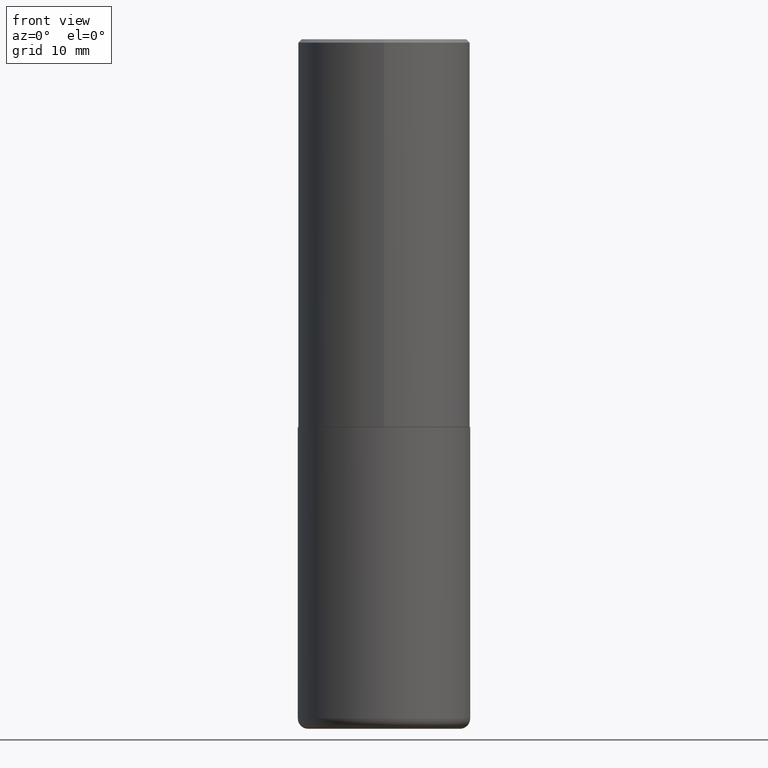
[diagram: clean part render]
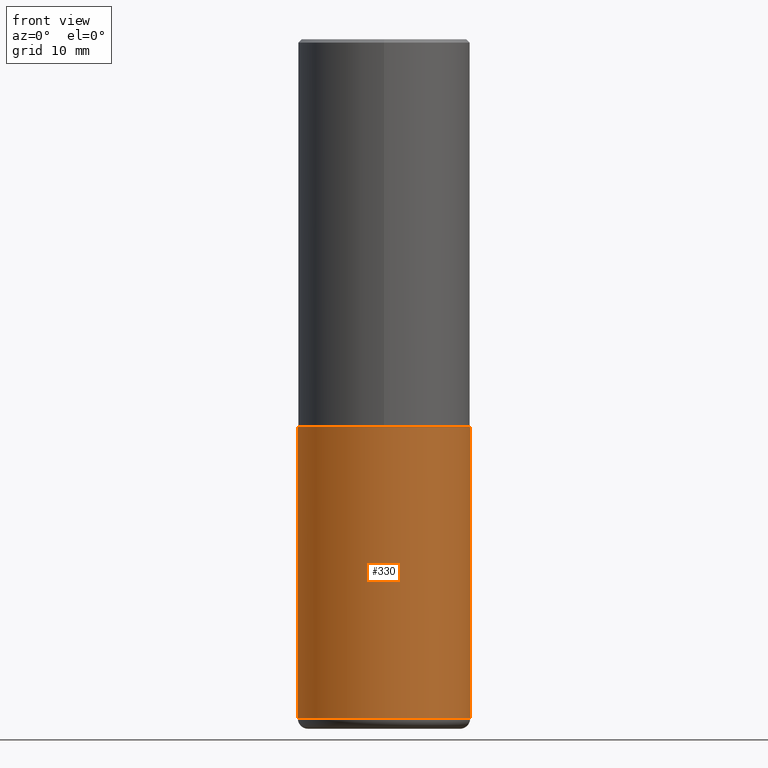
[diagram: same view with one face highlighted and labeled with its STEP entity id]
A machine part, front view. The second image highlights one B-rep face of the part: STEP entity #330.
In plain terms, the highlighted cylindrical surface (partial cylindrical patch) has radius 12.7 mm, axis along (-0, 0, 1).
Its self-contained STEP definition (entity closure, byte-faithful):
#11 = DIRECTION ( 'NONE',  ( -2.445468806185136877E-29, 3.491481338843145188E-15, 1.000000000000000000 ) ) ;
#17 = CARTESIAN_POINT ( 'NONE',  ( -0.5000000000000000000, -1.020372279624149466E-14, -3.939999999999999947 ) ) ;
#25 = DIRECTION ( 'NONE',  ( -2.445468806185136597E-29, 3.491481338843145583E-15, 1.000000000000000000 ) ) ;
#36 = VERTEX_POINT ( 'NONE', #273 ) ;
#45 = EDGE_LOOP ( 'NONE', ( #415, #283, #410, #186 ) ) ;
#80 = DIRECTION ( 'NONE',  ( -2.445468806185136597E-29, 3.491481338843145583E-15, 1.000000000000000000 ) ) ;
#83 = DIRECTION ( 'NONE',  ( -2.445468806185136597E-29, 3.491481338843145583E-15, 1.000000000000000000 ) ) ;
#110 = AXIS2_PLACEMENT_3D ( 'NONE', #185, #80, #333 ) ;
#115 = CIRCLE ( 'NONE', #240, 0.5000000000000000000 ) ;
#118 = FACE_OUTER_BOUND ( 'NONE', #45, .T. ) ;
#126 = EDGE_CURVE ( 'NONE', #215, #36, #115, .T. ) ;
#130 = LINE ( 'NONE', #336, #141 ) ;
#139 = CARTESIAN_POINT ( 'NONE',  ( 5.502304813916557343E-29, -7.855833012397078448E-15, -2.250000000000000000 ) ) ;
#141 = VECTOR ( 'NONE', #350, 39.37007874015748143 ) ;
#149 = CYLINDRICAL_SURFACE ( 'NONE', #110, 0.5000000000000000000 ) ;
#169 = EDGE_CURVE ( 'NONE', #289, #215, #302, .T. ) ;
#185 = CARTESIAN_POINT ( 'NONE',  ( 0.000000000000000000, 0.000000000000000000, 0.000000000000000000 ) ) ;
#186 = ORIENTED_EDGE ( 'NONE', *, *, #126, .F. ) ;
#215 = VERTEX_POINT ( 'NONE', #342 ) ;
#237 = EDGE_CURVE ( 'NONE', #289, #378, #257, .T. ) ;
#240 = AXIS2_PLACEMENT_3D ( 'NONE', #139, #83, #392 ) ;
#257 = CIRCLE ( 'NONE', #325, 0.5000000000000000000 ) ;
#261 = EDGE_CURVE ( 'NONE', #378, #36, #130, .T. ) ;
#273 = CARTESIAN_POINT ( 'NONE',  ( 0.5000000000000000000, -1.134731435124021180E-14, -2.250000000000000000 ) ) ;
#282 = CARTESIAN_POINT ( 'NONE',  ( 9.635147096369438236E-29, -1.375643647504199401E-14, -3.939999999999999947 ) ) ;
#283 = ORIENTED_EDGE ( 'NONE', *, *, #237, .T. ) ;
#289 = VERTEX_POINT ( 'NONE', #17 ) ;
#294 = CARTESIAN_POINT ( 'NONE',  ( -0.5000000000000000000, 3.552713678800500929E-15, -2.459467545127452891E-29 ) ) ;
#302 = LINE ( 'NONE', #294, #351 ) ;
#325 = AXIS2_PLACEMENT_3D ( 'NONE', #282, #25, #380 ) ;
#330 = ADVANCED_FACE ( 'NONE', ( #118 ), #149, .T. ) ;
#333 = DIRECTION ( 'NONE',  ( 1.000000000000000000, -6.982962677686266711E-15, 4.876176775795935793E-29 ) ) ;
#336 = CARTESIAN_POINT ( 'NONE',  ( 0.5000000000000000000, -3.491481338843133355E-15, 2.438088387897967896E-29 ) ) ;
#342 = CARTESIAN_POINT ( 'NONE',  ( -0.5000000000000000000, -7.253421064919035302E-15, -2.250000000000000000 ) ) ;
#350 = DIRECTION ( 'NONE',  ( -2.445468806185136877E-29, 3.491481338843145188E-15, 1.000000000000000000 ) ) ;
#351 = VECTOR ( 'NONE', #11, 39.37007874015748143 ) ;
#378 = VERTEX_POINT ( 'NONE', #400 ) ;
#380 = DIRECTION ( 'NONE',  ( 1.000000000000000000, -6.982962677686266711E-15, 0.000000000000000000 ) ) ;
#392 = DIRECTION ( 'NONE',  ( 1.000000000000000000, -6.982962677686269077E-15, 0.000000000000000000 ) ) ;
#400 = CARTESIAN_POINT ( 'NONE',  ( 0.5000000000000000000, -1.724791781388512737E-14, -3.939999999999999947 ) ) ;
#410 = ORIENTED_EDGE ( 'NONE', *, *, #261, .T. ) ;
#415 = ORIENTED_EDGE ( 'NONE', *, *, #169, .F. ) ;